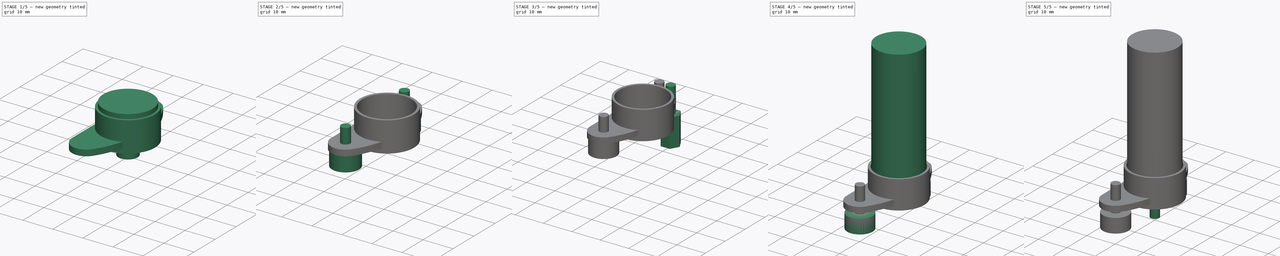
[diagram: build sequence overview — one tinted view per stage of 5, left to right]
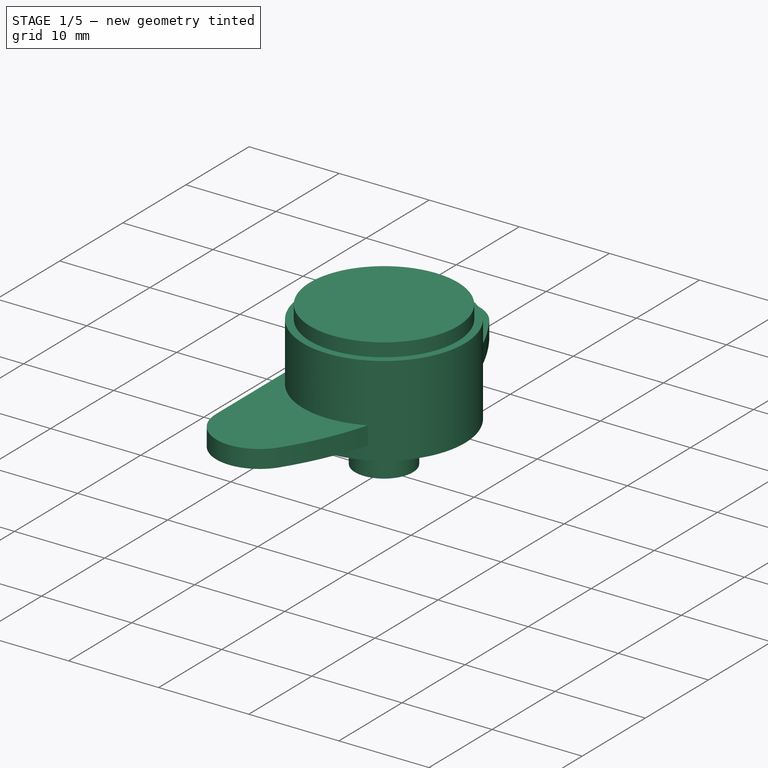
[diagram: stage 1 of 5 — iso view after this stage's code; geometry added in this stage tinted green]
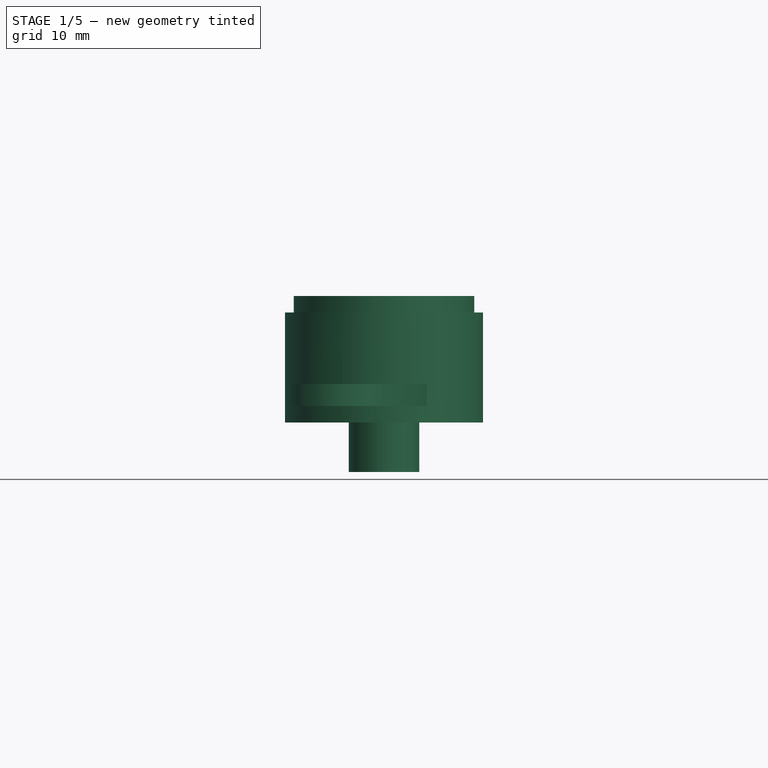
[diagram: stage 1 of 5 — front view after this stage's code; geometry added in this stage tinted green]
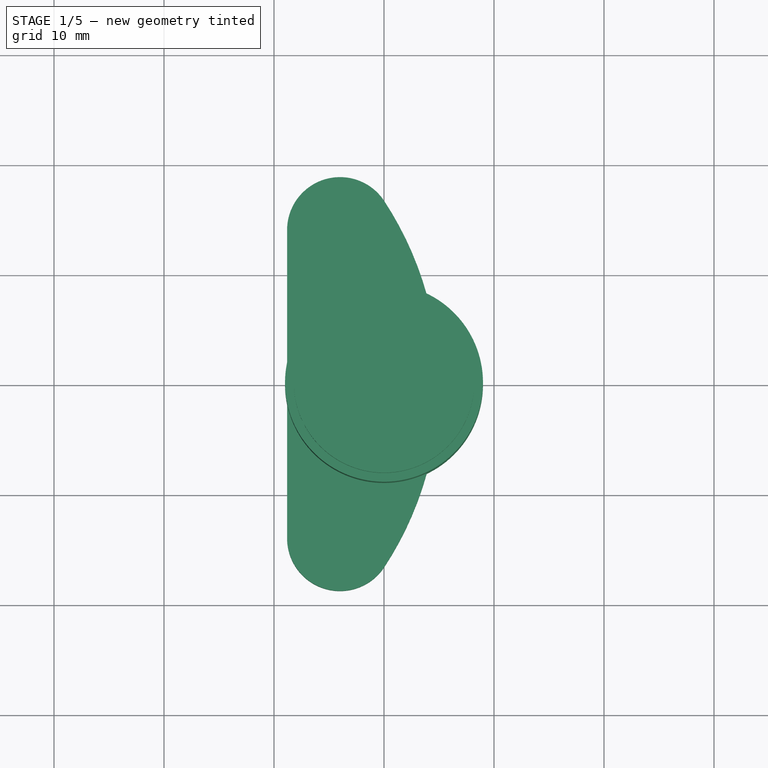
[diagram: stage 1 of 5 — top view after this stage's code; geometry added in this stage tinted green]
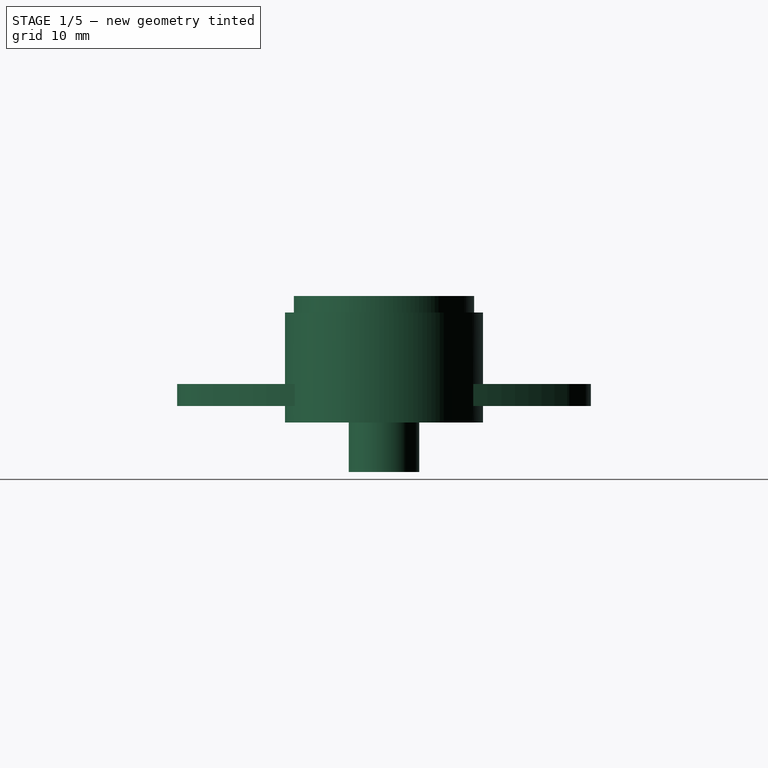
[diagram: stage 1 of 5 — right view after this stage's code; geometry added in this stage tinted green]
FCSTD DOCUMENT
Label: gear_motor_mount
License: CC-BY 3.0
LicenseURL: http://creativecommons.org/licenses/by/3.0/
objects: Part::Cylinder×12, Part::Cut×5, Part::MultiFuse×5, Part::Extrusion×4, Sketcher::SketchObject×3, Part::Part2DObjectPython×1
note: 30 computed .brp shape members not serialized (recipe doc carries the construction recipe); baked Part::Feature solids carry a one-line shape summary decoded from their .brp

FEATURE [Sketcher::SketchObject] Sketch002  label="MotorTopBracketSketch"
  sketch-geometry (6):
    g0: ArcOfCircle CenterX=-4 CenterY=14 CenterZ=0 NormalX=0 NormalY=0 NormalZ=1 Radius=4.81098 StartAngle=0.581474 EndAngle=3.14159
    g1: ArcOfCircle CenterX=-4 CenterY=-14 CenterZ=0 NormalX=0 NormalY=0 NormalZ=1 Radius=4.81098 StartAngle=3.14159 EndAngle=5.70172
    g2: LineSegment StartX=-8.81098 StartY=14 StartZ=0 EndX=-8.81098 EndY=-14 EndZ=0
    g3: ArcOfCircle CenterX=-25.3 CenterY=0 CenterZ=0 NormalX=0 NormalY=0 NormalZ=1 Radius=30.3 StartAngle=5.70171 EndAngle=6.86466
    g4: GeomPoint [constr] X=5 Y=0 Z=0
    g5: ArcOfCircle [constr] CenterX=-25.3 CenterY=0 CenterZ=0 NormalX=0 NormalY=0 NormalZ=1 Radius=25.489 StartAngle=5.70171 EndAngle=6.86466
  constraints (21):
    c: DistanceX(g0) = -4
    c: DistanceY(g0) = 14
    c: DistanceX(g1) = -4
    c: DistanceY(g1) = -14
    c: Vertical(g2)
    c: Coincident(g2,g1)
    c: Coincident(g2,g0)
    c: DistanceX(g3) = -25.3
    c: DistanceY(g3) = 0
    c: Coincident(g3,g1)
    c: Coincident(g3,g0)
    c: Tangent(g3,g0)
    c: Tangent(g3,g1)
    c: DistanceY(g4) = 0
    c: PointOnObject(g4,g3)
    c: DistanceX(g-1,g4) = 5
    c: Tangent(g0,g2)
    c: Coincident(g3,g5)
    c: PointOnObject(g0,g5)
    c: Coincident(g0,g5)
    c: Coincident(g5,g1)
FEATURE [Part::Cylinder] Cylinder007  label="MotorTopBracketCylinder"
  Angle = 360
  Height = 10
  Placement = pos=(0,0,-1.5) rot=(0,0,1;0rad)
  Radius = 9
FEATURE [Part::Cylinder] Cylinder008  label="OversizeMotorBody"
  Angle = 360
  Height = 10
  Radius = 8.2
FEATURE [Part::Cylinder] Cylinder009  label="OversizeMotorBearing"
  Angle = 360
  Height = 10
  Placement = pos=(0,0,-6) rot=(0,0,1;0rad)
  Radius = 3.2
FEATURE [Part::Extrusion] Extrude003  label="MotorTopBracket"
  Base = -> Sketch002
  Dir = (0,0,2)
  Solid = true
FEATURE [Part::MultiFuse] Fusion005  label="MotorTopBracket001"
  Shapes = -> [Cylinder007,Extrude003]
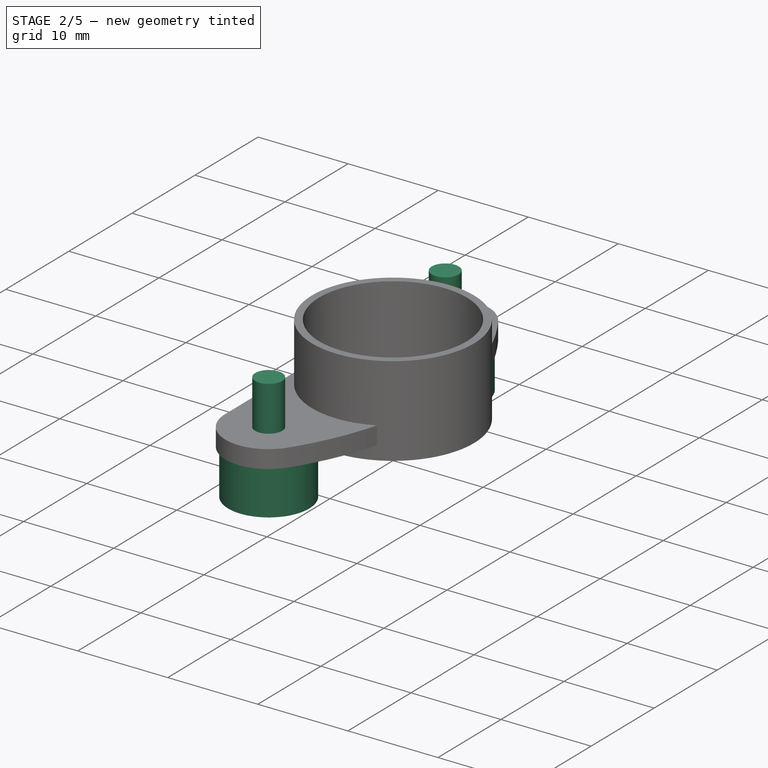
[diagram: stage 2 of 5 — iso view after this stage's code; geometry added in this stage tinted green]
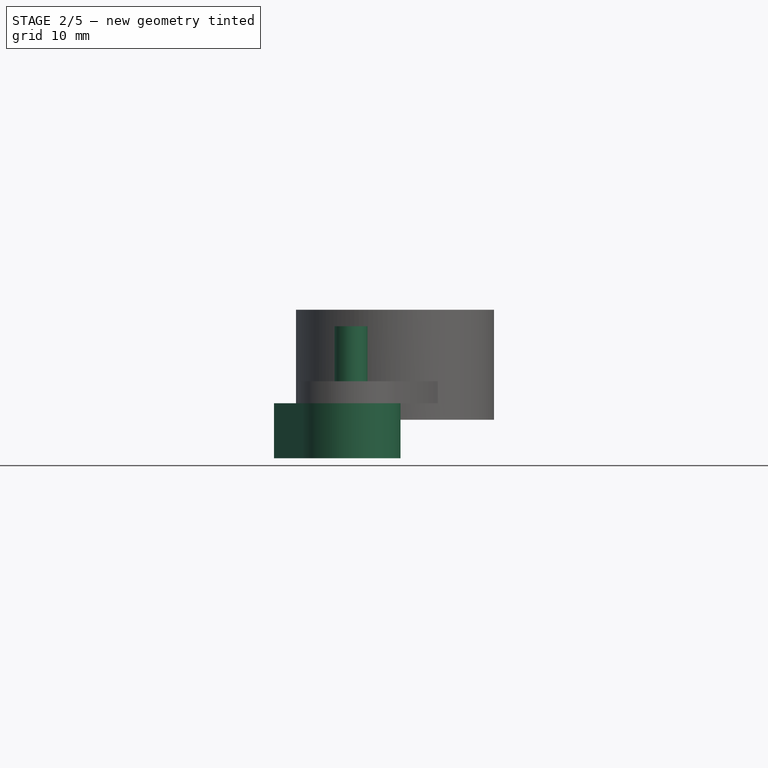
[diagram: stage 2 of 5 — front view after this stage's code; geometry added in this stage tinted green]
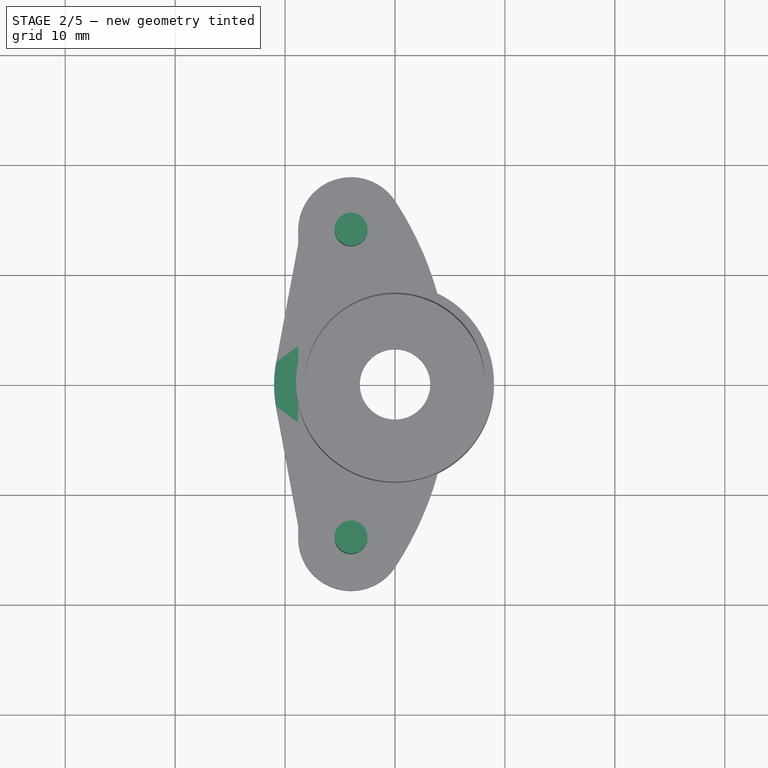
[diagram: stage 2 of 5 — top view after this stage's code; geometry added in this stage tinted green]
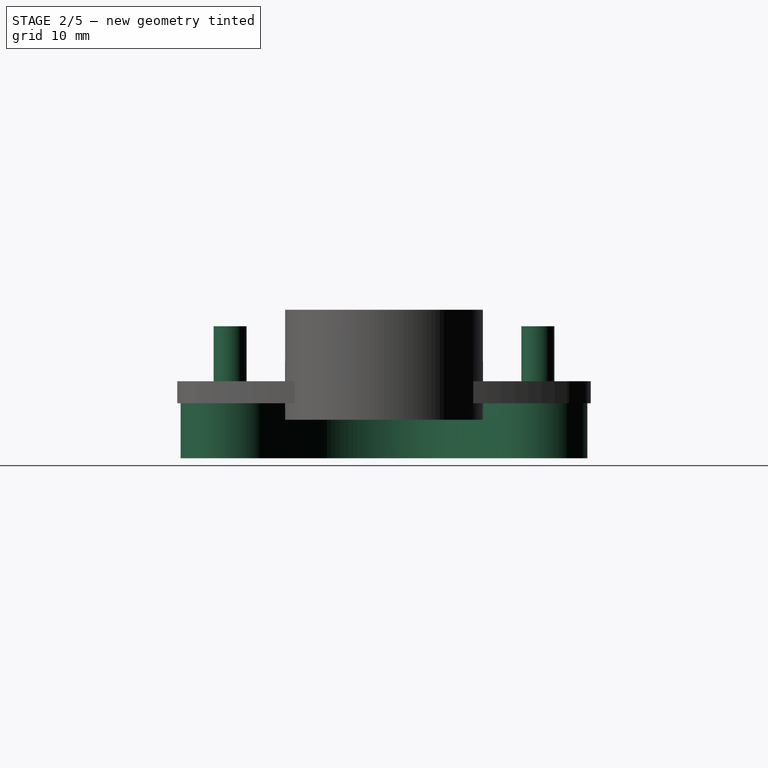
[diagram: stage 2 of 5 — right view after this stage's code; geometry added in this stage tinted green]
FEATURE [Sketcher::SketchObject] Sketch001  label="NutRetainerPlateSketch"
  sketch-geometry (10):
    g0: ArcOfCircle CenterX=0 CenterY=0 CenterZ=0 NormalX=0 NormalY=0 NormalZ=1 Radius=11 StartAngle=2.95713 EndAngle=3.32606
    g1: ArcOfCircle CenterX=-4 CenterY=14 CenterZ=0 NormalX=0 NormalY=0 NormalZ=1 Radius=4.5 StartAngle=5.37466 EndAngle=9.24032
    g2: ArcOfCircle CenterX=-4 CenterY=-14 CenterZ=0 NormalX=0 NormalY=0 NormalZ=1 Radius=4.5 StartAngle=3.32606 EndAngle=7.19171
    g3: LineSegment StartX=-8.42366 StartY=14.8254 StartZ=0 EndX=-10.8134 EndY=2.0176 EndZ=0
    g4: GeomPoint [constr] X=-4 Y=14 Z=0
    g5: GeomPoint [constr] X=-4 Y=-14 Z=0
    g6: LineSegment StartX=-10.8134 StartY=-2.01761 StartZ=0 EndX=-8.42365 EndY=-14.8254 EndZ=0
    g7: LineSegment StartX=-1.2329 StartY=10.4513 StartZ=0 EndX=-5.53419 EndY=7.09737 EndZ=0
    g8: ArcOfCircle CenterX=0 CenterY=0 CenterZ=0 NormalX=0 NormalY=0 NormalZ=1 Radius=9 StartAngle=2.23307 EndAngle=4.05012
    g9: LineSegment StartX=-1.23289 StartY=-10.4513 StartZ=0 EndX=-5.53419 EndY=-7.09738 EndZ=0
  constraints (28):
    c: Coincident(g0,g-1)
    c: Tangent(g3,g0)
    c: Tangent(g1,g3)
    c: DistanceX(g-1,g1) = -4
    c: DistanceY(g-1,g4) = 14
    c: DistanceY(g-1,g5) = -14
    c: DistanceX(g-1,g5) = -4
    c: Coincident(g1,g4)
    c: Coincident(g5,g2)
    c: Distance(g1,g1) = 4.5
    c: Distance(g2,g2) = 4.5
    c: Coincident(g6,g0)
    c: Tangent(g6,g0)
    c: Coincident(g2,g6)
    c: Tangent(g2,g6)
    c: Distance(g-1,g0) = 11
    c: Coincident(g7,g1)
    c: Tangent(g7,g1)
    c: Distance(g8,g8) = 9
    c: Coincident(g8,g-1)
    c: Coincident(g8,g7)
    c: Coincident(g1,g3)
    c: Coincident(g0,g3)
    c: Tangent(g7,g8)
    c: Coincident(g9,g2)
    c: Coincident(g9,g8)
    c: Tangent(g9,g2)
    c: Tangent(g9,g8)
FEATURE [Part::Extrusion] Extrude002  label="NutTrapRetainerPlateBlank"
  Base = -> Sketch001
  Dir = (0,0,5)
  Placement = pos=(0,0,-5) rot=(0,0,1;0rad)
  Solid = true
FEATURE [Part::Cylinder] Cylinder010  label="BoltCylinderA"
  Angle = 360
  Height = 10
  Placement = pos=(-4,14,-3) rot=(0,0,1;0rad)
  Radius = 1.5
FEATURE [Part::Cylinder] Cylinder011  label="BoltCylinderB"
  Angle = 360
  Height = 10
  Placement = pos=(-4,-14,-3) rot=(0,0,1;0rad)
  Radius = 1.5
FEATURE [Part::MultiFuse] Fusion004  label="OversizeMotor"
  Shapes = -> [Cylinder008,Cylinder009]
FEATURE [Part::Cut] Cut004  label="MotorTopBracket002"
  Base = -> Fusion005
  Tool = -> Fusion004
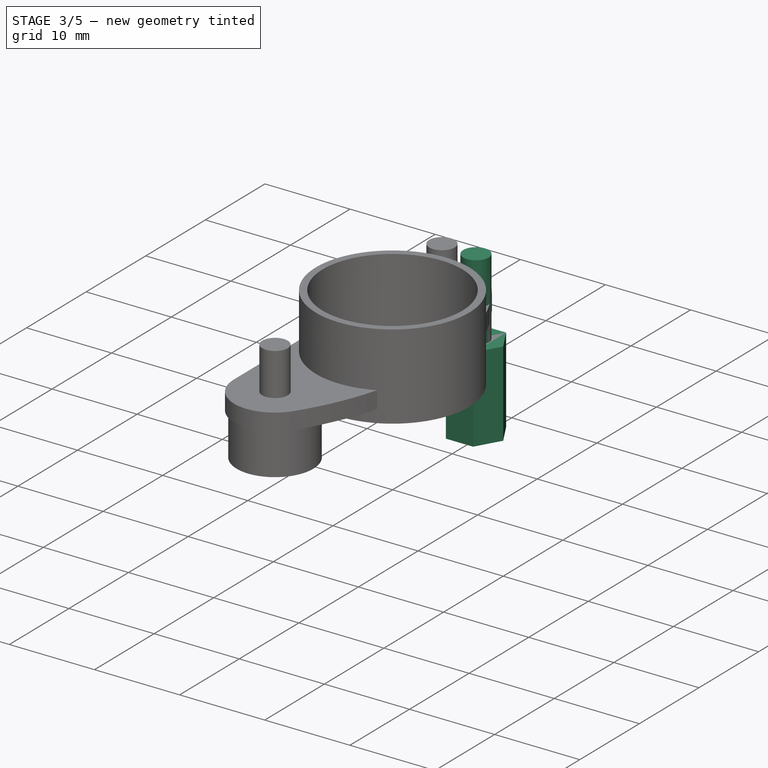
[diagram: stage 3 of 5 — iso view after this stage's code; geometry added in this stage tinted green]
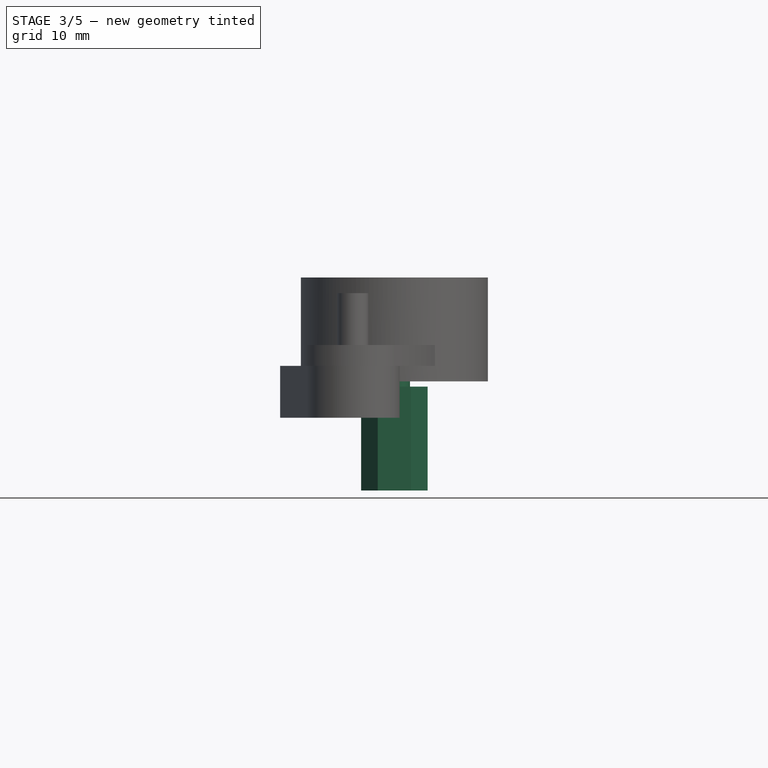
[diagram: stage 3 of 5 — front view after this stage's code; geometry added in this stage tinted green]
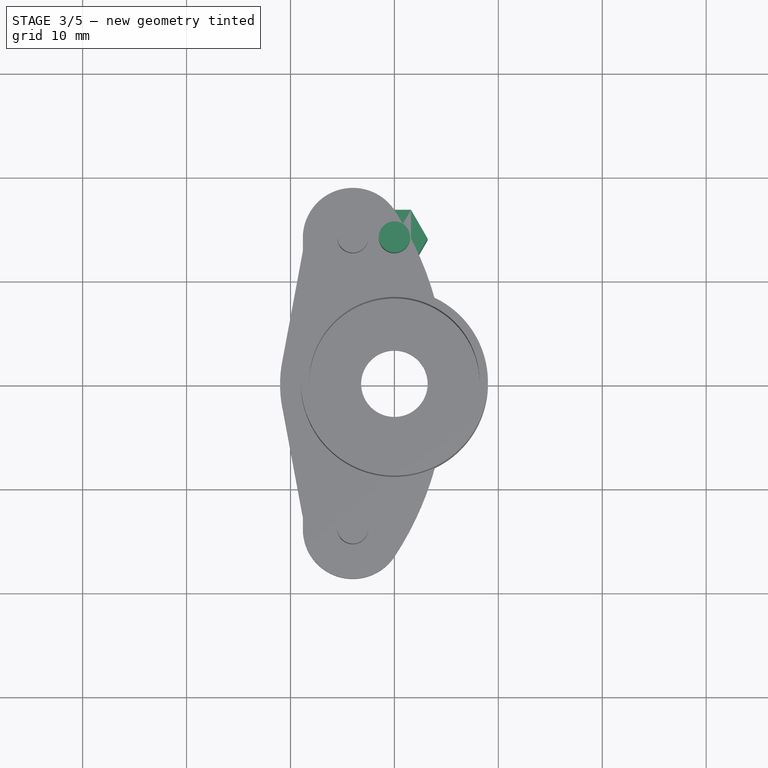
[diagram: stage 3 of 5 — top view after this stage's code; geometry added in this stage tinted green]
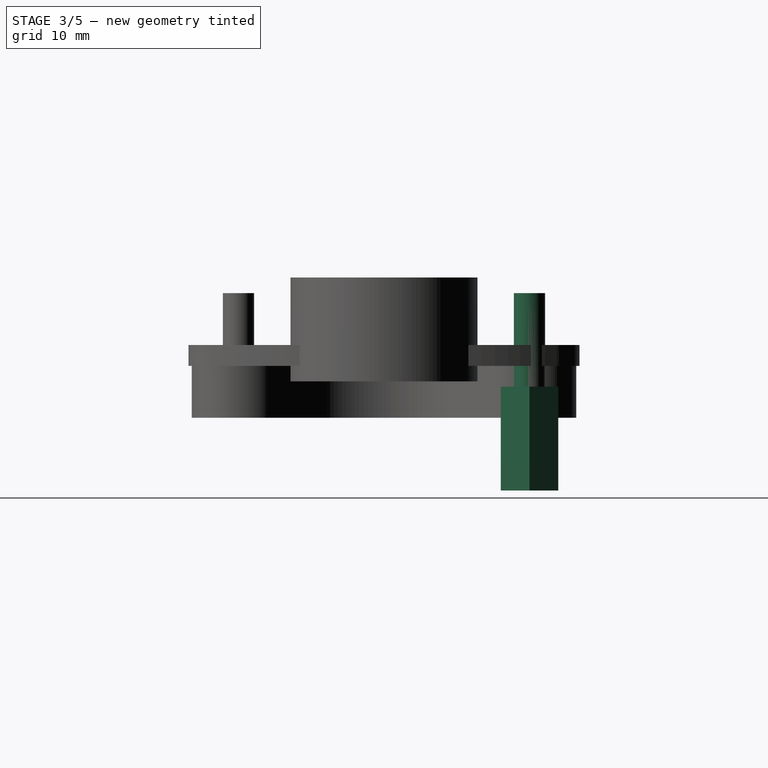
[diagram: stage 3 of 5 — right view after this stage's code; geometry added in this stage tinted green]
FEATURE [Sketcher::SketchObject] Sketch  label="HexagonSketch"
  sketch-geometry (7):
    g0: LineSegment StartX=-1.6 StartY=2.77128 StartZ=0 EndX=1.6 EndY=2.77128 EndZ=0
    g1: LineSegment StartX=1.6 StartY=2.77128 StartZ=0 EndX=3.2 EndY=0 EndZ=0
    g2: LineSegment StartX=3.2 StartY=0 StartZ=0 EndX=1.6 EndY=-2.77128 EndZ=0
    g3: LineSegment StartX=1.6 StartY=-2.77128 StartZ=0 EndX=-1.6 EndY=-2.77128 EndZ=0
    g4: LineSegment StartX=-1.6 StartY=-2.77128 StartZ=0 EndX=-3.2 EndY=0 EndZ=0
    g5: LineSegment StartX=-3.2 StartY=0 StartZ=0 EndX=-1.6 EndY=2.77128 EndZ=0
    g6: GeomPoint [constr] X=0 Y=0 Z=0
  constraints (19):
    c: Coincident(g0,g1)
    c: Coincident(g1,g2)
    c: Coincident(g2,g3)
    c: Coincident(g3,g4)
    c: Coincident(g4,g5)
    c: Coincident(g5,g0)
    c: Distance(g0) = 3.2
    c: Distance(g0,g6) = 3.2
    c: Distance(g0,g6) = 3.2
    c: Distance(g5) = 3.2
    c: Distance(g6,g4) = 3.2
    c: Distance(g3,g4) = 3.2
    c: Distance(g3,g6) = 3.2
    c: Distance(g2,g3) = 3.2
    c: Distance(g2,g6) = 3.2
    c: Distance(g1,g2) = 3.2
    c: Distance(g1,g6) = 3.2
    c: Coincident(g6,g-1)
    c: Horizontal(g0)
FEATURE [Part::Extrusion] Extrude  label="M3NutTrapA"
  Base = -> Sketch
  Dir = (0,0,10)
  Placement = pos=(0,14,-12) rot=(0,0,1;0rad)
  Solid = true
FEATURE [Part::Extrusion] Extrude001  label="M3NutTrapB"
  Base = -> Sketch
  Dir = (0,0,10)
  Placement = pos=(0,-14,-12) rot=(0,0,1;0rad)
  Solid = true
FEATURE [Part::Cylinder] Cylinder005  label="M3NutTrapCylB"
  Angle = 360
  Height = 10
  Placement = pos=(0,-14,-3) rot=(0,0,1;0rad)
  Radius = 1.5
FEATURE [Part::Cylinder] Cylinder006  label="M3NutTrapCylA"
  Angle = 360
  Height = 10
  Placement = pos=(0,14,-3) rot=(0,0,1;0rad)
  Radius = 1.5
FEATURE [Part::MultiFuse] Fusion002  label="NutTrapCutoutA"
  Placement = pos=(-4,0,0) rot=(0,0,1;0rad)
  Shapes = -> [Cylinder005,Extrude001]
FEATURE [Part::Part2DObjectPython] Circle  # Draft 2D object (typed FeaturePython)
  FirstAngle = 0
  LastAngle = 0
  Placement = pos=(-25.3,0.12,0) rot=(0,0,1;0rad)
  Radius = 35
FEATURE [Part::Cut] Cut002  label="NutTrapRetainerPlateBlank001"
  Base = -> Extrude002
  Tool = -> Fusion002
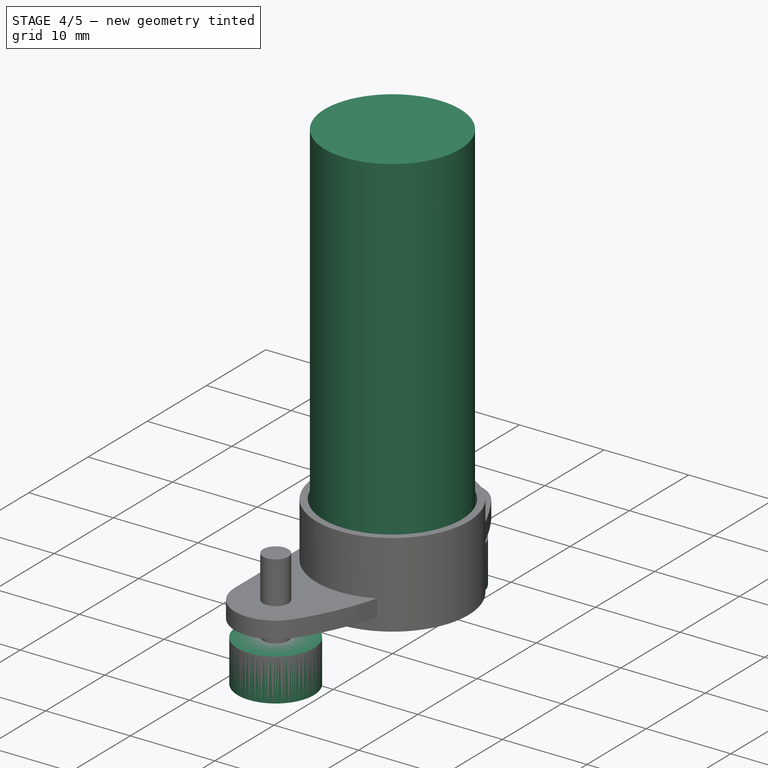
[diagram: stage 4 of 5 — iso view after this stage's code; geometry added in this stage tinted green]
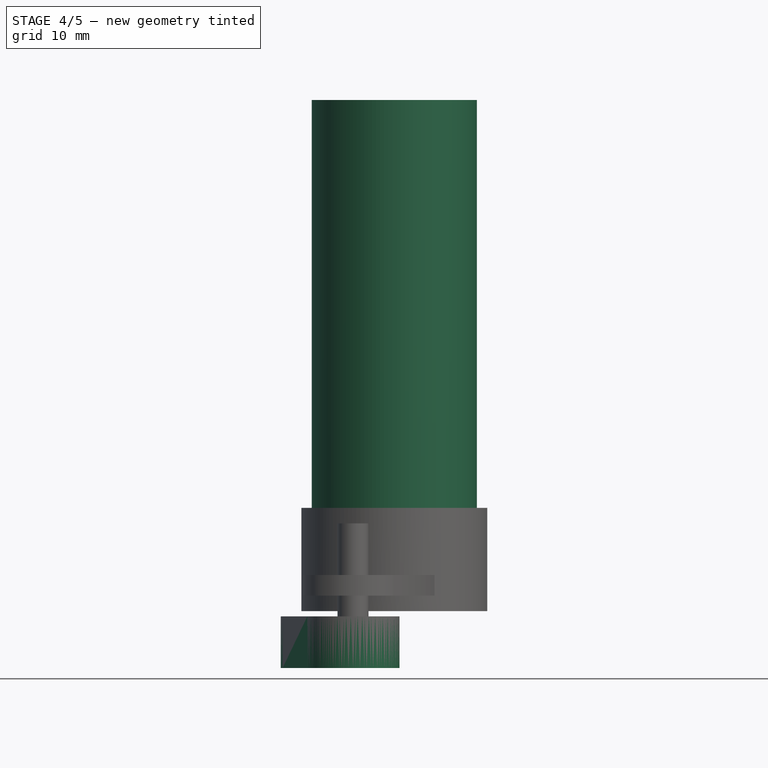
[diagram: stage 4 of 5 — front view after this stage's code; geometry added in this stage tinted green]
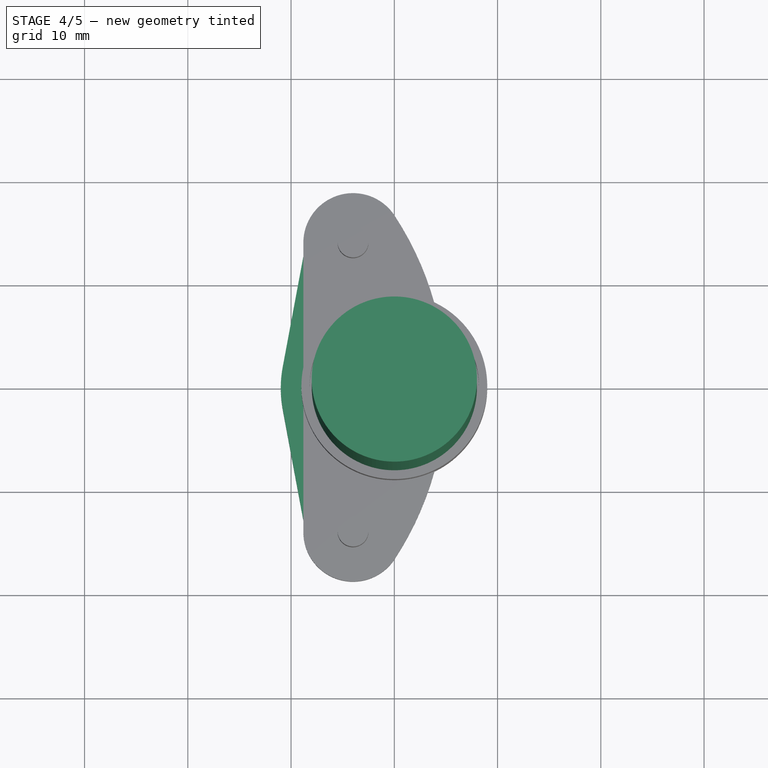
[diagram: stage 4 of 5 — top view after this stage's code; geometry added in this stage tinted green]
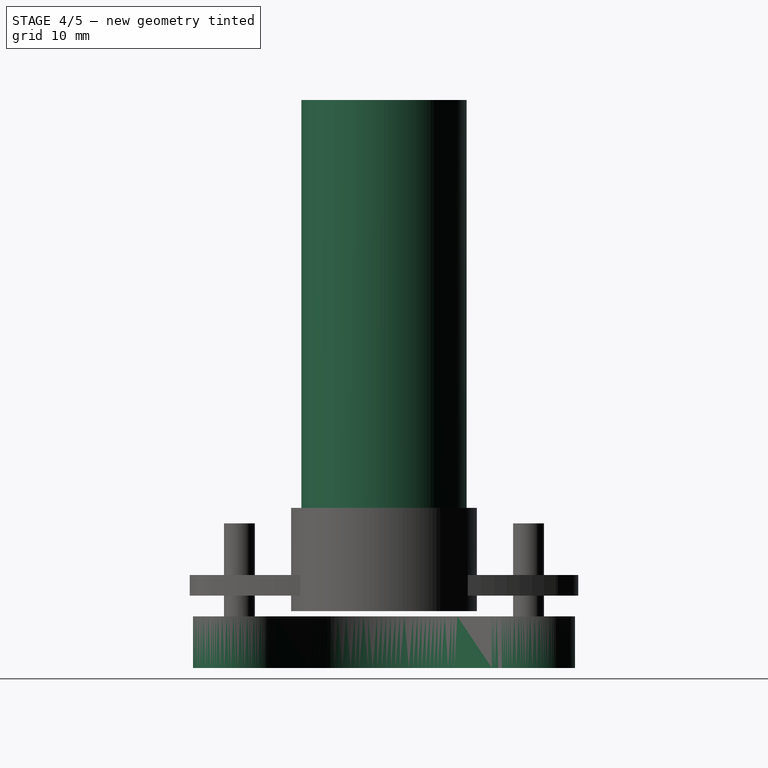
[diagram: stage 4 of 5 — right view after this stage's code; geometry added in this stage tinted green]
FEATURE [Part::Cylinder] Cylinder  label="motor_body"
  Angle = 360
  Height = 48
  Radius = 8
FEATURE [Part::Cylinder] Cylinder003
  Angle = 360
  Height = 8.5
  Placement = pos=(5.5,0,-8) rot=(0,0,1;0rad)
  Radius = 1
FEATURE [Part::Cut] Cut
  Base = -> Cylinder
  Tool = -> Cylinder003
FEATURE [Part::MultiFuse] Fusion001  label="NutTrapCutoutB"
  Placement = pos=(-4,0,0) rot=(0,0,1;0rad)
  Shapes = -> [Cylinder006,Extrude]
FEATURE [Part::Cut] Cut003  label="MotorRetainerNutTrap"
  Base = -> Cut002
  Placement = pos=(0,0,-2) rot=(0,0,1;0rad)
  Tool = -> Fusion001
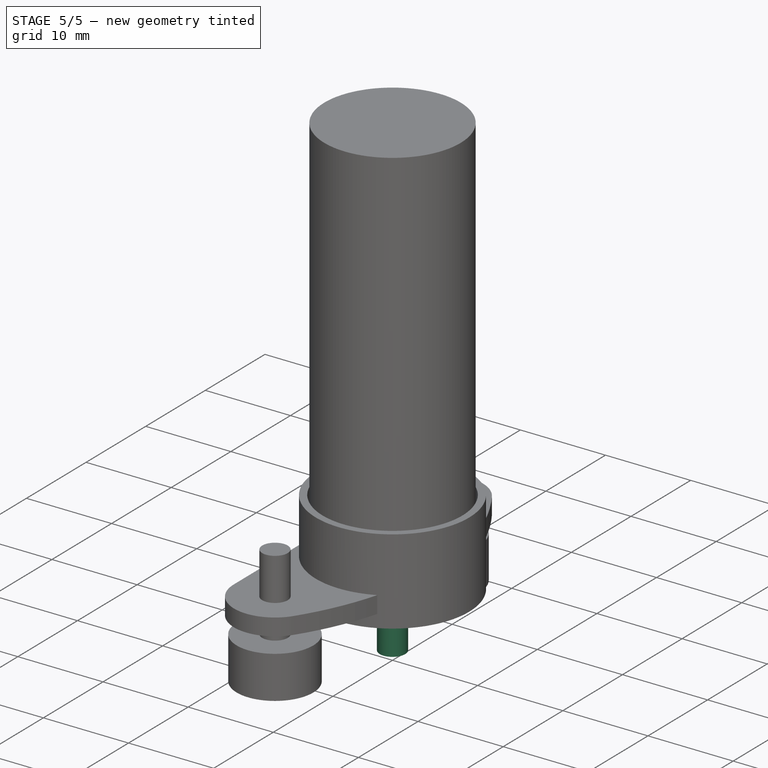
[diagram: stage 5 of 5 — iso view after this stage's code; geometry added in this stage tinted green]
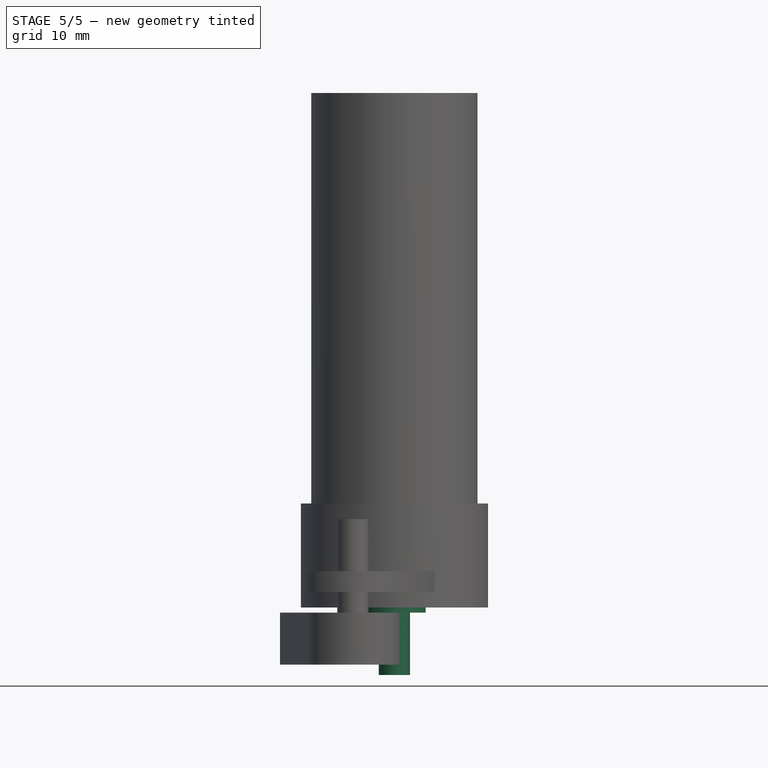
[diagram: stage 5 of 5 — front view after this stage's code; geometry added in this stage tinted green]
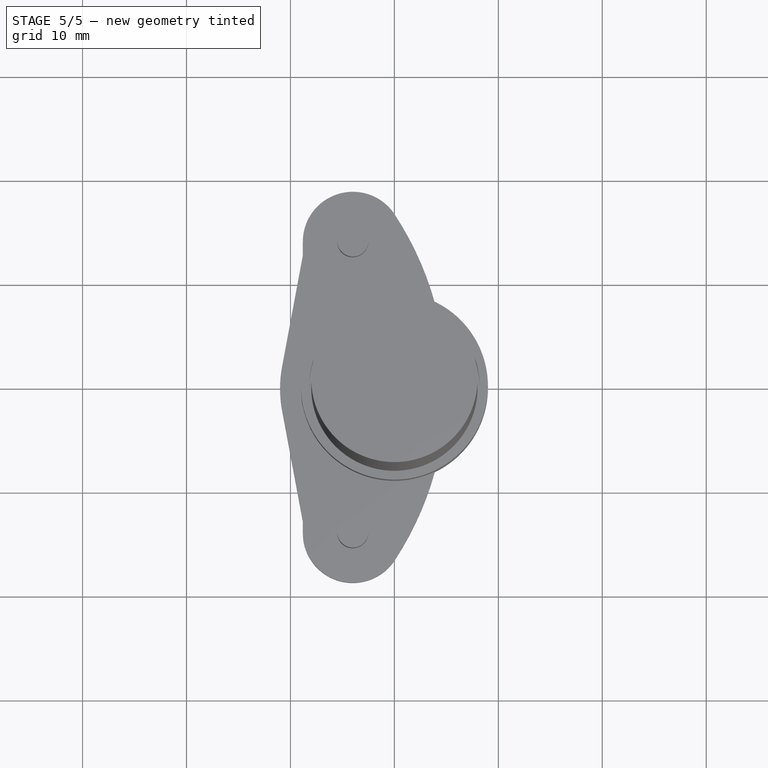
[diagram: stage 5 of 5 — top view after this stage's code; geometry added in this stage tinted green]
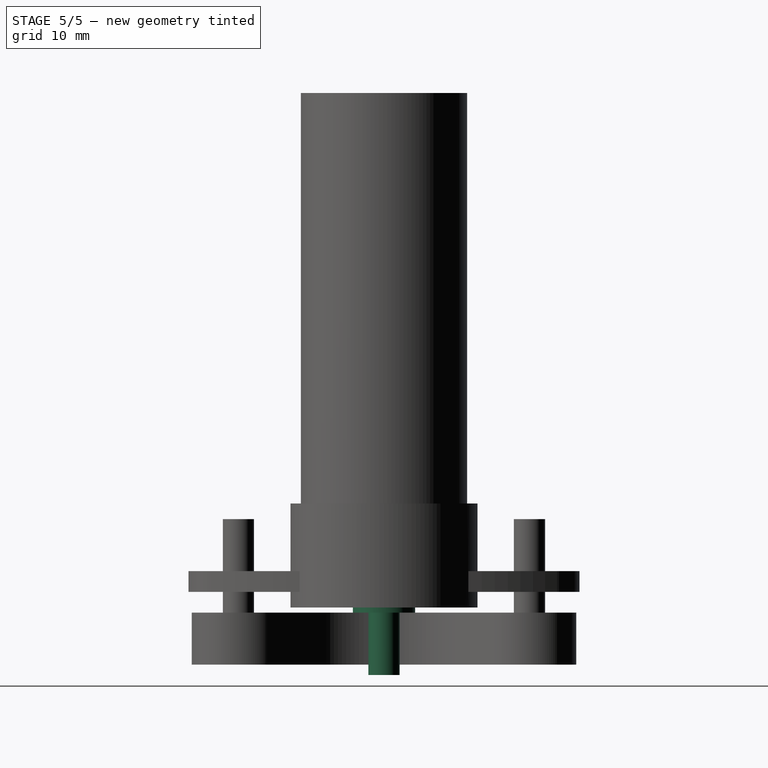
[diagram: stage 5 of 5 — right view after this stage's code; geometry added in this stage tinted green]
FEATURE [Part::Cylinder] Cylinder001  label="motor_shaft"
  Angle = 360
  Height = 8
  Placement = pos=(0,0,-8) rot=(0,0,1;0rad)
  Radius = 1.5
FEATURE [Part::Cylinder] Cylinder002  label="bearing"
  Angle = 360
  Height = 2.5
  Placement = pos=(0,0,-2) rot=(0,0,1;0rad)
  Radius = 3
FEATURE [Part::Cylinder] Cylinder004
  Angle = 360
  Height = 8.5
  Placement = pos=(-5.5,0,-8) rot=(0,0,1;0rad)
  Radius = 1
FEATURE [Part::Cut] Cut001
  Base = -> Cut
  Tool = -> Cylinder004
FEATURE [Part::MultiFuse] Fusion
  Placement = pos=(0,0,0) rot=(0,0,1;0.785397rad)
  Shapes = -> [Cylinder001,Cylinder002,Cut001]
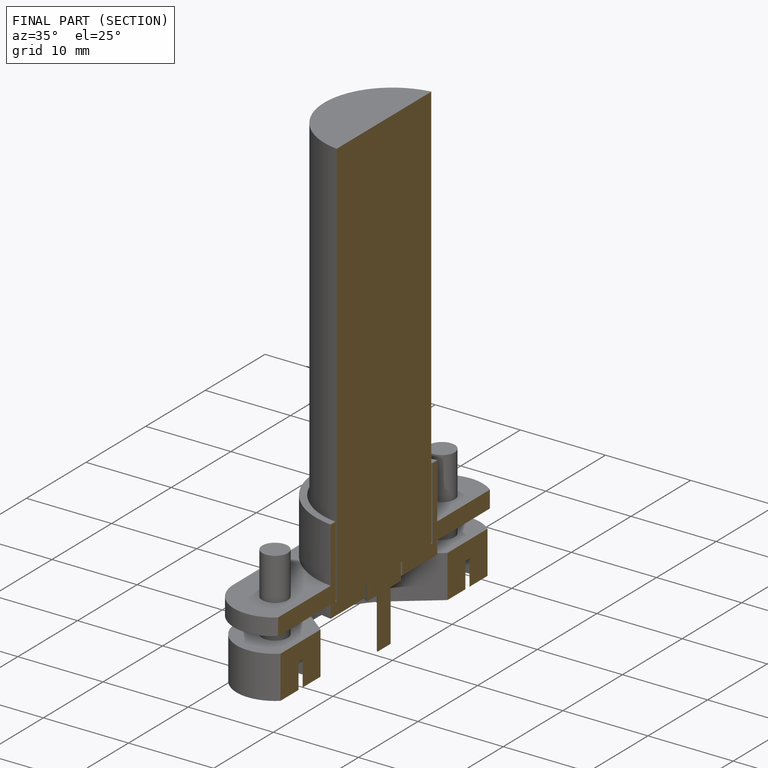
[diagram: finished part — half-section view (interior)]
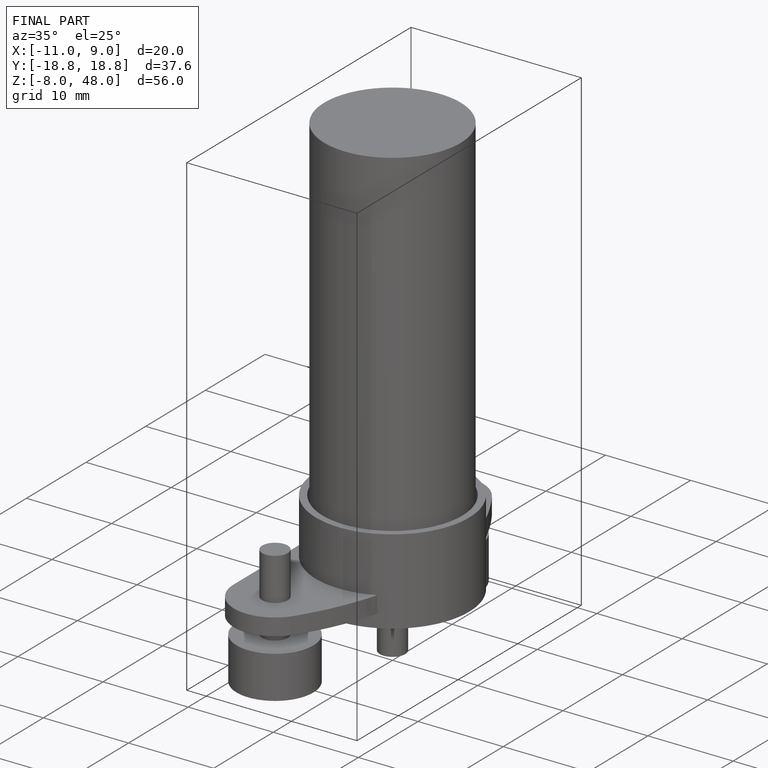
[diagram: finished part — iso view with bounding-box wireframe]
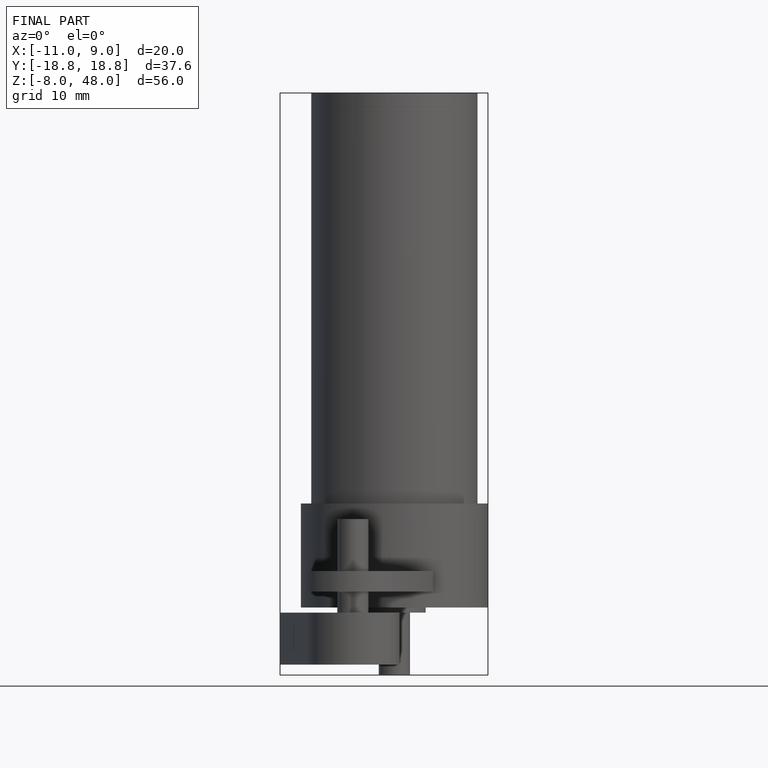
[diagram: finished part — front view with bounding-box wireframe]
